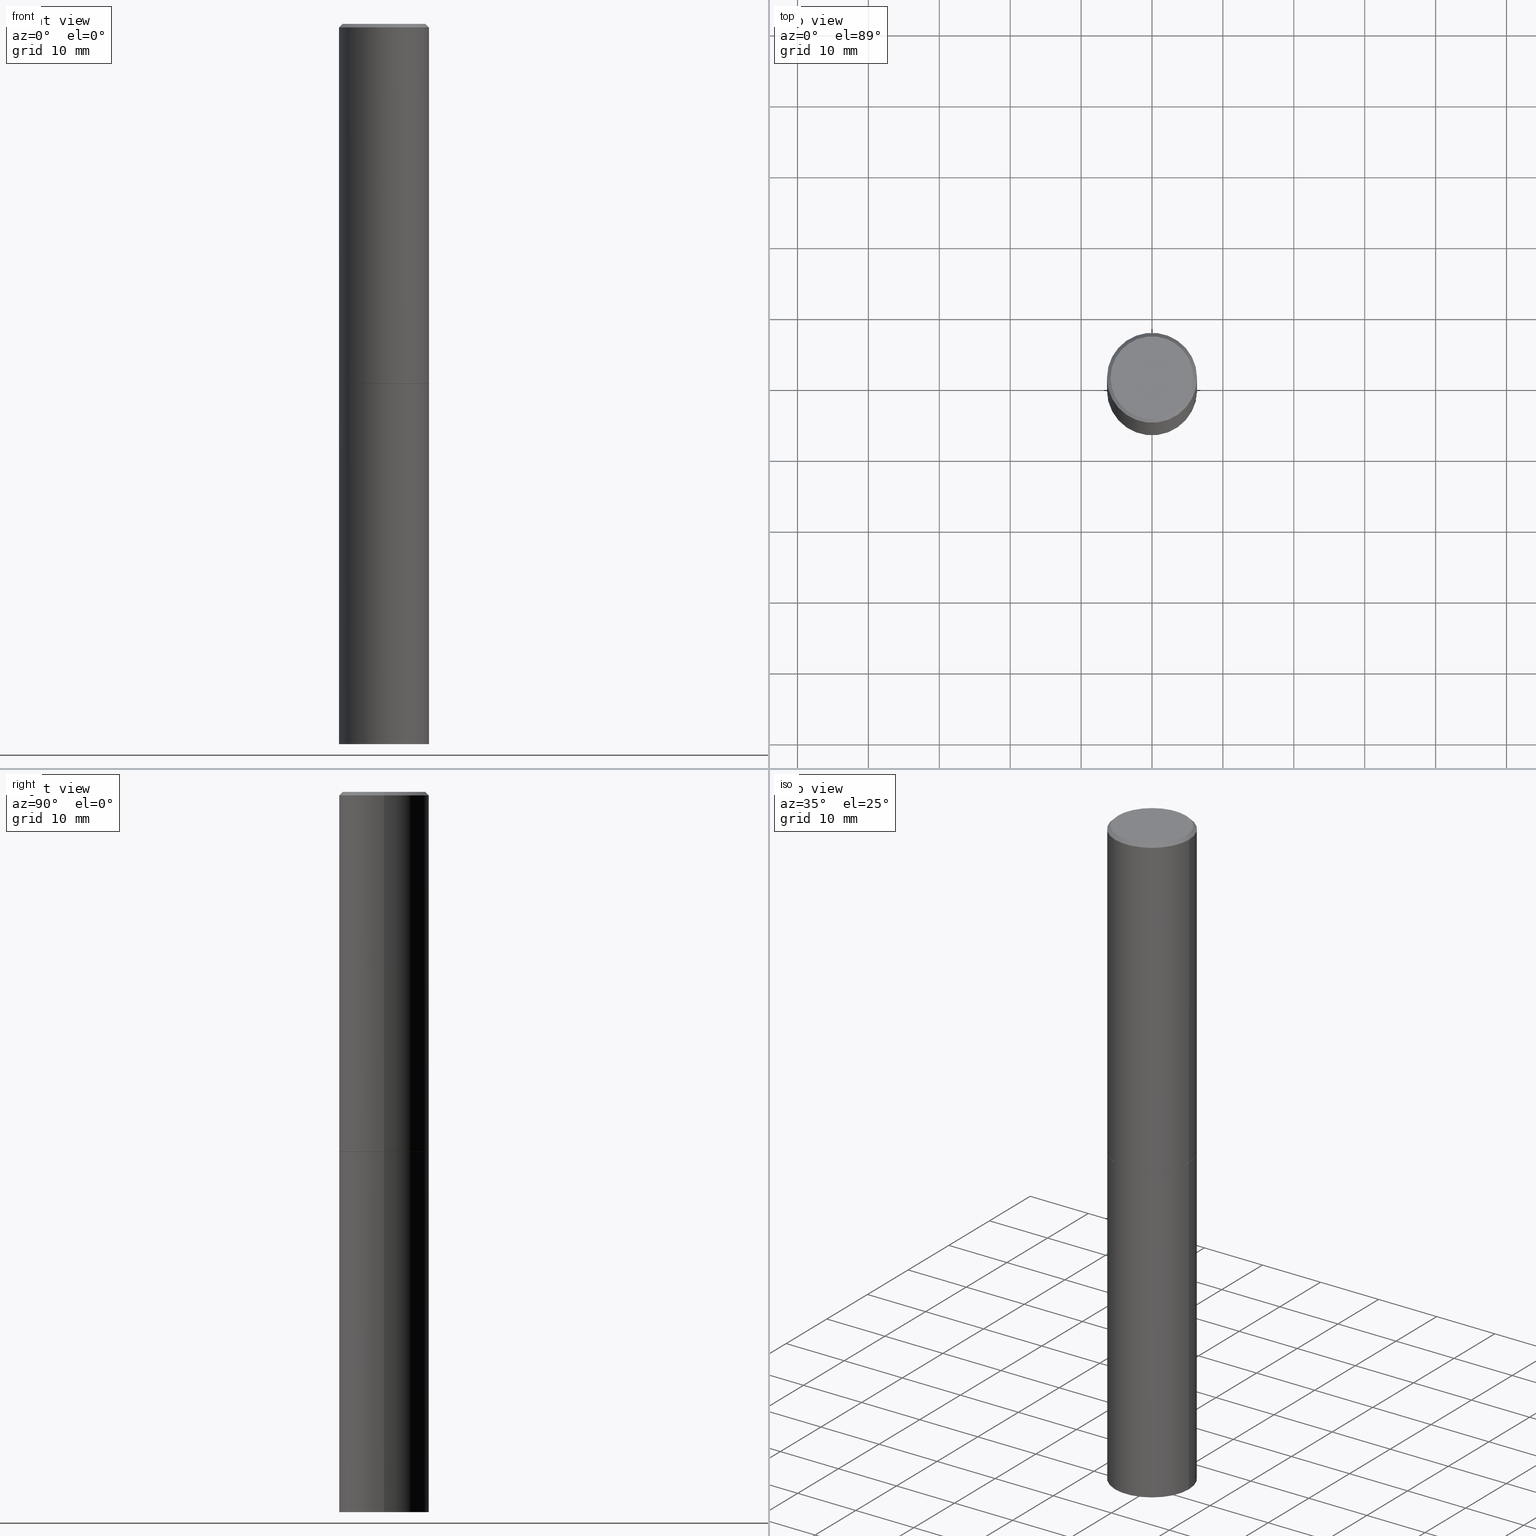
[diagram: canonical four-view strip — front | top / right | iso, engineering-drawing reading convention]
A machine part, canonical four-view strip (front | top / right | iso — engineering-drawing reading convention). The complete STEP part file that produces these views, byte-faithful:
ISO-10303-21;
HEADER;
FILE_DESCRIPTION (( 'STEP AP203' ),
    '1' );
FILE_NAME ('77197.STEP',
    '2024-02-29T16:11:59',
    ( '' ),
    ( '' ),
    'SwSTEP 2.0',
    'SolidWorks 2023',
    '' );
FILE_SCHEMA (( 'CONFIG_CONTROL_DESIGN' ));
ENDSEC;

DATA;
#1 = DIRECTION ( 'NONE',  ( 1.000000000000000000, -6.982962677686266711E-15, 4.876225828469314487E-29 ) ) ;
#2 = DIRECTION ( 'NONE',  ( 1.000000000000000000, -6.982962677686266711E-15, 0.000000000000000000 ) ) ;
#3 = CALENDAR_DATE ( 2024, 29, 2 ) ;
#4 = DIRECTION ( 'NONE',  ( 1.000000000000000000, -6.982962677686266711E-15, 0.000000000000000000 ) ) ;
#5 = PERSON ( 'UNSPECIFIED', 'UNSPECIFIED', 'UNSPECIFIED', ('UNSPECIFIED'), ('UNSPECIFIED'), ('UNSPECIFIED') ) ;
#6 = LINE ( 'NONE', #164, #232 ) ;
#7 = CARTESIAN_POINT ( 'NONE',  ( 4.888492143564087591E-29, -6.979471196347447369E-15, -1.998999999999999888 ) ) ;
#8 = FACE_OUTER_BOUND ( 'NONE', #159, .T. ) ;
#9 = DESIGN_CONTEXT ( 'detailed design', #226, 'design' ) ;
#10 = FACE_OUTER_BOUND ( 'NONE', #306, .T. ) ;
#11 = ORIENTED_EDGE ( 'NONE', *, *, #128, .F. ) ;
#12 = LENGTH_MEASURE_WITH_UNIT ( LENGTH_MEASURE( 0.02539999999999999897 ), #179 );
#13 = PERSON_AND_ORGANIZATION ( #5, #366 ) ;
#14 = VECTOR ( 'NONE', #338, 39.37007874015748143 ) ;
#15 = ORIENTED_EDGE ( 'NONE', *, *, #265, .T. ) ;
#16 = ADVANCED_FACE ( 'NONE', ( #96 ), #328, .T. ) ;
#17 = DIRECTION ( 'NONE',  ( -2.445468806185136597E-29, 3.491481338843145583E-15, 1.000000000000000000 ) ) ;
#18 = ORIENTED_EDGE ( 'NONE', *, *, #258, .T. ) ;
#19 = APPROVAL_ROLE ( '' ) ;
#20 = ORIENTED_EDGE ( 'NONE', *, *, #364, .F. ) ;
#21 = ORIENTED_EDGE ( 'NONE', *, *, #364, .T. ) ;
#22 = FACE_OUTER_BOUND ( 'NONE', #41, .T. ) ;
#23 = COORDINATED_UNIVERSAL_TIME_OFFSET ( 5, 0, .BEHIND. ) ;
#24 = AXIS2_PLACEMENT_3D ( 'NONE', #202, #252, #194 ) ;
#25 = DIRECTION ( 'NONE',  ( -2.445468806185136597E-29, 3.491481338843145583E-15, 1.000000000000000000 ) ) ;
#26 = FACE_OUTER_BOUND ( 'NONE', #299, .T. ) ;
#27 = CARTESIAN_POINT ( 'NONE',  ( 9.781875224740546387E-29, -1.396592535537258233E-14, -4.000000000000000000 ) ) ;
#28 = DIRECTION ( 'NONE',  ( -2.445468806185136597E-29, 3.491481338843145583E-15, 1.000000000000000000 ) ) ;
#29 = DIRECTION ( 'NONE',  ( 0.000000000000000000, 0.000000000000000000, 1.000000000000000000 ) ) ;
#30 = CARTESIAN_POINT ( 'NONE',  ( 0.2499999999999998057, -1.784954126219744611E-15, -0.02000000000000005593 ) ) ;
#31 = PLANE ( 'NONE',  #150 ) ;
#32 = ORIENTED_EDGE ( 'NONE', *, *, #91, .T. ) ;
#33 = DIRECTION ( 'NONE',  ( -2.445468806185136597E-29, 3.491481338843145583E-15, 1.000000000000000000 ) ) ;
#34 = AXIS2_PLACEMENT_3D ( 'NONE', #322, #319, #59 ) ;
#35 = CARTESIAN_POINT ( 'NONE',  ( 4.890937612370287172E-31, -6.982962677686310098E-17, -0.02000000000000005593 ) ) ;
#36 = APPROVAL ( #48, 'UNSPECIFIED' ) ;
#37 = ORIENTED_EDGE ( 'NONE', *, *, #250, .T. ) ;
#38 = CARTESIAN_POINT ( 'NONE',  ( 0.2500000000000000000, -1.745740669421566678E-15, 1.219044193948983948E-29 ) ) ;
#39 = VERTEX_POINT ( 'NONE', #331 ) ;
#40 = CC_DESIGN_SECURITY_CLASSIFICATION ( #264, ( #329 ) ) ;
#41 = EDGE_LOOP ( 'NONE', ( #239, #32 ) ) ;
#42 = ORIENTED_EDGE ( 'NONE', *, *, #191, .F. ) ;
#43 = AXIS2_PLACEMENT_3D ( 'NONE', #27, #53, #342 ) ;
#44 = ORIENTED_EDGE ( 'NONE', *, *, #203, .T. ) ;
#45 = ADVANCED_FACE ( 'NONE', ( #279 ), #347, .T. ) ;
#46 = APPROVAL_ROLE ( '' ) ;
#47 = CARTESIAN_POINT ( 'NONE',  ( 0.2500000000000000000, -1.571166602479415059E-14, -4.000000000000000000 ) ) ;
#48 = APPROVAL_STATUS ( 'not_yet_approved' ) ;
#49 = PLANE ( 'NONE',  #121 ) ;
#50 = SHAPE_DEFINITION_REPRESENTATION ( #335, #240 ) ;
#51 = EDGE_CURVE ( 'NONE', #94, #185, #76, .T. ) ;
#52 = CARTESIAN_POINT ( 'NONE',  ( -0.2299999999999997324, 1.640996229256270744E-15, 4.268512490089056766E-18 ) ) ;
#53 = DIRECTION ( 'NONE',  ( -2.445468806185136597E-29, 3.491481338843145583E-15, 1.000000000000000000 ) ) ;
#54 = PERSON_AND_ORGANIZATION ( #5, #366 ) ;
#55 = CYLINDRICAL_SURFACE ( 'NONE', #92, 0.2499999999999998890 ) ;
#56 = AXIS2_PLACEMENT_3D ( 'NONE', #35, #257, #317 ) ;
#57 = FACE_OUTER_BOUND ( 'NONE', #272, .T. ) ;
#58 = LOCAL_TIME ( 11, 11, 59.00000000000000000, #251 ) ;
#59 = DIRECTION ( 'NONE',  ( 1.000000000000000000, -6.982962677686266711E-15, 0.000000000000000000 ) ) ;
#60 = PERSON_AND_ORGANIZATION ( #5, #366 ) ;
#61 = CARTESIAN_POINT ( 'NONE',  ( -0.2499999999999998057, 1.675911042644702196E-15, -0.02000000000000005593 ) ) ;
#62 = CARTESIAN_POINT ( 'NONE',  ( 0.2499999999999998057, -1.784954126219744611E-15, -0.02000000000000005593 ) ) ;
#63 = DIRECTION ( 'NONE',  ( 0.7071067811865474617, -7.319954787623256045E-15, -0.7071067811865474617 ) ) ;
#64 = DIRECTION ( 'NONE',  ( -0.7071067811865474617, 2.468850131082256666E-15, -0.7071067811865474617 ) ) ;
#65 = EDGE_CURVE ( 'NONE', #189, #187, #339, .T. ) ;
#66 = ORIENTED_EDGE ( 'NONE', *, *, #163, .T. ) ;
#67 = CIRCLE ( 'NONE', #312, 0.2500000000000000000 ) ;
#68 = COORDINATED_UNIVERSAL_TIME_OFFSET ( 5, 0, .BEHIND. ) ;
#69 = EDGE_CURVE ( 'NONE', #129, #303, #120, .T. ) ;
#70 = ORIENTED_EDGE ( 'NONE', *, *, #191, .T. ) ;
#71 = AXIS2_PLACEMENT_3D ( 'NONE', #337, #29, #308 ) ;
#72 = ORIENTED_EDGE ( 'NONE', *, *, #113, .T. ) ;
#73 = CC_DESIGN_PERSON_AND_ORGANIZATION_ASSIGNMENT ( #60, #321, ( #329 ) ) ;
#74 = ORIENTED_EDGE ( 'NONE', *, *, #128, .T. ) ;
#75 = CIRCLE ( 'NONE', #97, 0.2489999999999999991 ) ;
#76 = LINE ( 'NONE', #106, #263 ) ;
#77 = PERSON_AND_ORGANIZATION_ROLE ( 'design_owner' ) ;
#78 = DIRECTION ( 'NONE',  ( 2.438088387897960049E-29, -3.491481338843145188E-15, -1.000000000000000000 ) ) ;
#79 = ADVANCED_FACE ( 'NONE', ( #22 ), #201, .F. ) ;
#80 = DIRECTION ( 'NONE',  ( 1.000000000000000000, -6.982962677686270655E-15, 0.000000000000000000 ) ) ;
#81 = CALENDAR_DATE ( 2024, 29, 2 ) ;
#82 = CIRCLE ( 'NONE', #298, 0.2500000000000000000 ) ;
#83 = DIRECTION ( 'NONE',  ( -2.445468806185136597E-29, 3.491481338843145583E-15, 1.000000000000000000 ) ) ;
#84 = CARTESIAN_POINT ( 'NONE',  ( 0.2489999999999999991, -8.721720384430171040E-15, -1.999999999999999778 ) ) ;
#85 = DIRECTION ( 'NONE',  ( -2.445468806185136597E-29, 3.491481338843145583E-15, 1.000000000000000000 ) ) ;
#86 = CARTESIAN_POINT ( 'NONE',  ( -1.043851414335219820E-46, 1.490343170380447200E-32, 4.268512490100411279E-18 ) ) ;
#87 = CARTESIAN_POINT ( 'NONE',  ( 0.2489999999999999991, -8.721720384430171040E-15, -1.999999999999999778 ) ) ;
#88 = DIRECTION ( 'NONE',  ( -2.445468806185136597E-29, 3.491481338843145583E-15, 1.000000000000000000 ) ) ;
#89 = PERSON_AND_ORGANIZATION_ROLE ( 'design_supplier' ) ;
#90 = CARTESIAN_POINT ( 'NONE',  ( -0.2500000000000000000, -8.698087177129185889E-15, -4.000000000000000000 ) ) ;
#91 = EDGE_CURVE ( 'NONE', #39, #156, #283, .T. ) ;
#92 = AXIS2_PLACEMENT_3D ( 'NONE', #172, #234, #293 ) ;
#93 = ORIENTED_EDGE ( 'NONE', *, *, #65, .T. ) ;
#94 = VERTEX_POINT ( 'NONE', #313 ) ;
#95 = CIRCLE ( 'NONE', #173, 0.2500000000000000000 ) ;
#96 = FACE_OUTER_BOUND ( 'NONE', #101, .T. ) ;
#97 = AXIS2_PLACEMENT_3D ( 'NONE', #144, #85, #141 ) ;
#98 = CC_DESIGN_PERSON_AND_ORGANIZATION_ASSIGNMENT ( #255, #246, ( #235 ) ) ;
#99 = VERTEX_POINT ( 'NONE', #177 ) ;
#100 = ORIENTED_EDGE ( 'NONE', *, *, #258, .F. ) ;
#101 = EDGE_LOOP ( 'NONE', ( #44, #183, #326, #216 ) ) ;
#102 = APPROVAL_PERSON_ORGANIZATION ( #140, #170, #46 ) ;
#103 = ADVANCED_FACE ( 'NONE', ( #10 ), #204, .F. ) ;
#104 = CALENDAR_DATE ( 2024, 29, 2 ) ;
#105 = DIRECTION ( 'NONE',  ( -2.445468806185136597E-29, 3.491481338843145583E-15, 1.000000000000000000 ) ) ;
#106 = CARTESIAN_POINT ( 'NONE',  ( -0.2489999999999999991, -5.213711265643640920E-15, -1.999999999999999778 ) ) ;
#107 = DATE_AND_TIME ( #3, #117 ) ;
#108 = CARTESIAN_POINT ( 'NONE',  ( 4.890937612370273194E-29, -6.982962677686291165E-15, -2.000000000000000000 ) ) ;
#109 = CARTESIAN_POINT ( 'NONE',  ( 0.2500000000000000000, -8.728703347107857054E-15, -2.000000000000000000 ) ) ;
#110 = CALENDAR_DATE ( 2024, 29, 2 ) ;
#111 = CARTESIAN_POINT ( 'NONE',  ( 4.890937612370287172E-31, -6.982962677686310098E-17, -0.02000000000000005593 ) ) ;
#112 = DIRECTION ( 'NONE',  ( -2.445468806185136597E-29, 3.491481338843145583E-15, 1.000000000000000000 ) ) ;
#113 = EDGE_CURVE ( 'NONE', #189, #185, #95, .T. ) ;
#114 = DIRECTION ( 'NONE',  ( 1.000000000000000000, -6.982962677686266711E-15, 0.000000000000000000 ) ) ;
#115 = DIRECTION ( 'NONE',  ( 1.000000000000000000, -6.982962677686266711E-15, 4.876176775795935793E-29 ) ) ;
#116 = PERSON_AND_ORGANIZATION_ROLE ( 'classification_officer' ) ;
#117 = LOCAL_TIME ( 11, 11, 59.00000000000000000, #23 ) ;
#118 = CARTESIAN_POINT ( 'NONE',  ( 1.745740669421615390E-15, 0.2499999999999930334, -2.000000000000000888 ) ) ;
#119 = DATE_TIME_ROLE ( 'classification_date' ) ;
#120 = CIRCLE ( 'NONE', #43, 0.2500000000000000000 ) ;
#121 = AXIS2_PLACEMENT_3D ( 'NONE', #171, #78, #309 ) ;
#122 = ORIENTED_EDGE ( 'NONE', *, *, #203, .F. ) ;
#123 = ORIENTED_EDGE ( 'NONE', *, *, #91, .F. ) ;
#124 = ORIENTED_EDGE ( 'NONE', *, *, #142, .T. ) ;
#125 = EDGE_CURVE ( 'NONE', #156, #39, #143, .T. ) ;
#126 = EDGE_LOOP ( 'NONE', ( #72, #186, #11, #214 ) ) ;
#127 = LOCAL_TIME ( 11, 11, 59.00000000000000000, #261 ) ;
#128 = EDGE_CURVE ( 'NONE', #187, #99, #318, .T. ) ;
#129 = VERTEX_POINT ( 'NONE', #90 ) ;
#130 = ORIENTED_EDGE ( 'NONE', *, *, #69, .T. ) ;
#131 = CLOSED_SHELL ( 'NONE', ( #16, #330, #207, #149, #134, #45, #296, #79 ) ) ;
#132 = APPROVAL_DATE_TIME ( #107, #170 ) ;
#133 = CC_DESIGN_APPROVAL ( #170, ( #235 ) ) ;
#134 = ADVANCED_FACE ( 'NONE', ( #146 ), #260, .T. ) ;
#135 = CYLINDRICAL_SURFACE ( 'NONE', #212, 0.2500000000000000000 ) ;
#136 = DIRECTION ( 'NONE',  ( -2.445468806185136597E-29, 3.491481338843145583E-15, 1.000000000000000000 ) ) ;
#137 = MECHANICAL_CONTEXT ( 'NONE', #152, 'mechanical' ) ;
#138 = FACE_OUTER_BOUND ( 'NONE', #273, .T. ) ;
#139 = CARTESIAN_POINT ( 'NONE',  ( -1.043851414335219820E-46, 1.490343170380447200E-32, 4.268512490100411279E-18 ) ) ;
#140 = PERSON_AND_ORGANIZATION ( #5, #366 ) ;
#141 = DIRECTION ( 'NONE',  ( 1.000000000000000000, -6.982962677686266711E-15, 0.000000000000000000 ) ) ;
#142 = EDGE_CURVE ( 'NONE', #39, #187, #266, .T. ) ;
#143 = CIRCLE ( 'NONE', #360, 0.2299999999999997324 ) ;
#144 = CARTESIAN_POINT ( 'NONE',  ( 4.890937612370272633E-29, -6.982962677686290376E-15, -1.999999999999999778 ) ) ;
#145 = CYLINDRICAL_SURFACE ( 'NONE', #361, 0.2500000000000000000 ) ;
#146 = FACE_OUTER_BOUND ( 'NONE', #237, .T. ) ;
#147 = PERSON_AND_ORGANIZATION ( #5, #366 ) ;
#148 = AXIS2_PLACEMENT_3D ( 'NONE', #139, #307, #1 ) ;
#149 = ADVANCED_FACE ( 'NONE', ( #289 ), #290, .T. ) ;
#150 = AXIS2_PLACEMENT_3D ( 'NONE', #229, #225, #282 ) ;
#151 = DIRECTION ( 'NONE',  ( 2.438088387897960049E-29, -3.491481338843145188E-15, -1.000000000000000000 ) ) ;
#152 = APPLICATION_CONTEXT ( 'configuration controlled 3d designs of mechanical parts and assemblies' ) ;
#153 =( NAMED_UNIT ( * ) SI_UNIT ( $, .STERADIAN. ) SOLID_ANGLE_UNIT ( ) );
#154 = LINE ( 'NONE', #87, #284 ) ;
#155 =( GEOMETRIC_REPRESENTATION_CONTEXT ( 3 ) GLOBAL_UNCERTAINTY_ASSIGNED_CONTEXT ( ( #301 ) ) GLOBAL_UNIT_ASSIGNED_CONTEXT ( ( #292, #208, #153 ) ) REPRESENTATION_CONTEXT ( 'NONE', 'WORKASPACE' ) );
#156 = VERTEX_POINT ( 'NONE', #52 ) ;
#157 = EDGE_LOOP ( 'NONE', ( #354, #350, #297, #160 ) ) ;
#158 = EDGE_CURVE ( 'NONE', #185, #99, #249, .T. ) ;
#159 = EDGE_LOOP ( 'NONE', ( #123, #124, #74, #357 ) ) ;
#160 = ORIENTED_EDGE ( 'NONE', *, *, #178, .F. ) ;
#161 = ORIENTED_EDGE ( 'NONE', *, *, #346, .T. ) ;
#162 = CC_DESIGN_DATE_AND_TIME_ASSIGNMENT ( #280, #219, ( #235 ) ) ;
#163 = EDGE_CURVE ( 'NONE', #99, #187, #304, .T. ) ;
#164 = CARTESIAN_POINT ( 'NONE',  ( -0.2500000000000000000, 1.776356839400250465E-15, -1.229733772563726445E-29 ) ) ;
#165 = AXIS2_PLACEMENT_3D ( 'NONE', #118, #151, #230 ) ;
#166 = APPLICATION_PROTOCOL_DEFINITION ( 'international standard', 'config_control_design', 1994, #152 ) ;
#167 = AXIS2_PLACEMENT_3D ( 'NONE', #193, #285, #227 ) ;
#168 = DIRECTION ( 'NONE',  ( -2.445468806185136597E-29, 3.491481338843145583E-15, 1.000000000000000000 ) ) ;
#169 = COORDINATED_UNIVERSAL_TIME_OFFSET ( 5, 0, .BEHIND. ) ;
#170 = APPROVAL ( #343, 'UNSPECIFIED' ) ;
#171 = CARTESIAN_POINT ( 'NONE',  ( 1.745740669421664299E-15, 0.2499999999999860389, -4.000000000000000888 ) ) ;
#172 = CARTESIAN_POINT ( 'NONE',  ( 0.000000000000000000, 0.000000000000000000, 0.000000000000000000 ) ) ;
#173 = AXIS2_PLACEMENT_3D ( 'NONE', #233, #112, #180 ) ;
#174 = AXIS2_PLACEMENT_3D ( 'NONE', #310, #83, #114 ) ;
#175 = LOCAL_TIME ( 11, 11, 59.00000000000000000, #68 ) ;
#176 = DIRECTION ( 'NONE',  ( -2.445468806185136877E-29, 3.491481338843145188E-15, 1.000000000000000000 ) ) ;
#177 = CARTESIAN_POINT ( 'NONE',  ( -0.2499999999999998057, 1.675911042644702196E-15, -0.02000000000000005593 ) ) ;
#178 = EDGE_CURVE ( 'NONE', #185, #189, #217, .T. ) ;
#179 =( LENGTH_UNIT ( ) NAMED_UNIT ( * ) SI_UNIT ( $, .METRE. ) );
#180 = DIRECTION ( 'NONE',  ( 1.000000000000000000, -6.982962677686266711E-15, 0.000000000000000000 ) ) ;
#181 = AXIS2_PLACEMENT_3D ( 'NONE', #269, #17, #359 ) ;
#182 = ORIENTED_EDGE ( 'NONE', *, *, #250, .F. ) ;
#183 = ORIENTED_EDGE ( 'NONE', *, *, #51, .T. ) ;
#184 = APPROVAL_PERSON_ORGANIZATION ( #13, #362, #19 ) ;
#185 = VERTEX_POINT ( 'NONE', #345 ) ;
#186 = ORIENTED_EDGE ( 'NONE', *, *, #158, .T. ) ;
#187 = VERTEX_POINT ( 'NONE', #30 ) ;
#188 = AXIS2_PLACEMENT_3D ( 'NONE', #7, #168, #247 ) ;
#189 = VERTEX_POINT ( 'NONE', #198 ) ;
#190 = ADVANCED_FACE ( 'NONE', ( #314 ), #135, .T. ) ;
#191 = EDGE_CURVE ( 'NONE', #303, #129, #67, .T. ) ;
#192 = APPROVAL_DATE_TIME ( #195, #362 ) ;
#193 = CARTESIAN_POINT ( 'NONE',  ( 4.890937612370287172E-31, -6.982962677686310098E-17, -0.02000000000000005593 ) ) ;
#194 = DIRECTION ( 'NONE',  ( 1.000000000000000000, -6.982962677686266711E-15, 0.000000000000000000 ) ) ;
#195 = DATE_AND_TIME ( #104, #175 ) ;
#196 = DIRECTION ( 'NONE',  ( -1.000000000000000000, 6.982962677686265922E-15, -4.876176775795935793E-29 ) ) ;
#197 = VECTOR ( 'NONE', #64, 39.37007874015748854 ) ;
#198 = CARTESIAN_POINT ( 'NONE',  ( 0.2500000000000000000, -8.725211865769014047E-15, -1.998999999999999888 ) ) ;
#199 = CARTESIAN_POINT ( 'NONE',  ( 0.2499999999999998890, -1.745740669421565889E-15, 1.219044193948983388E-29 ) ) ;
#200 = FACE_OUTER_BOUND ( 'NONE', #126, .T. ) ;
#201 = PLANE ( 'NONE',  #311 ) ;
#202 = CARTESIAN_POINT ( 'NONE',  ( 4.890937612370272633E-29, -6.982962677686290376E-15, -1.999999999999999778 ) ) ;
#203 = EDGE_CURVE ( 'NONE', #295, #94, #75, .T. ) ;
#204 = PLANE ( 'NONE',  #165 ) ;
#205 = LINE ( 'NONE', #61, #197 ) ;
#206 = DATE_AND_TIME ( #81, #242 ) ;
#207 = ADVANCED_FACE ( 'NONE', ( #8 ), #276, .T. ) ;
#208 =( NAMED_UNIT ( * ) PLANE_ANGLE_UNIT ( ) SI_UNIT ( $, .RADIAN. ) );
#209 = LINE ( 'NONE', #38, #320 ) ;
#210 = EDGE_CURVE ( 'NONE', #94, #295, #325, .T. ) ;
#211 = EDGE_LOOP ( 'NONE', ( #70, #18, #333, #20 ) ) ;
#212 = AXIS2_PLACEMENT_3D ( 'NONE', #220, #105, #340 ) ;
#213 = ADVANCED_FACE ( 'NONE', ( #57 ), #49, .T. ) ;
#214 = ORIENTED_EDGE ( 'NONE', *, *, #65, .F. ) ;
#215 = EDGE_LOOP ( 'NONE', ( #363, #288, #161, #66 ) ) ;
#216 = ORIENTED_EDGE ( 'NONE', *, *, #356, .F. ) ;
#217 = CIRCLE ( 'NONE', #188, 0.2500000000000000000 ) ;
#218 = DIRECTION ( 'NONE',  ( 2.438088387897960049E-29, -3.491481338843145188E-15, -1.000000000000000000 ) ) ;
#219 = DATE_TIME_ROLE ( 'creation_date' ) ;
#220 = CARTESIAN_POINT ( 'NONE',  ( 0.000000000000000000, 0.000000000000000000, 0.000000000000000000 ) ) ;
#221 = DIRECTION ( 'NONE',  ( -0.7071067811866199593, 7.493145998870616062E-15, 0.7071067811864750752 ) ) ;
#222 = PERSON_AND_ORGANIZATION ( #5, #366 ) ;
#223 = DIRECTION ( 'NONE',  ( -2.445468806185136597E-29, 3.491481338843145583E-15, 1.000000000000000000 ) ) ;
#224 = DIMENSIONAL_EXPONENTS ( 1.000000000000000000, 0.000000000000000000, 0.000000000000000000, 0.000000000000000000, 0.000000000000000000, 0.000000000000000000, 0.000000000000000000 ) ;
#225 = DIRECTION ( 'NONE',  ( -2.438088387897960049E-29, 3.491481338843145188E-15, 1.000000000000000000 ) ) ;
#226 = APPLICATION_CONTEXT ( 'configuration controlled 3d designs of mechanical parts and assemblies' ) ;
#227 = DIRECTION ( 'NONE',  ( -1.000000000000000000, 6.982962677686266711E-15, 0.000000000000000000 ) ) ;
#228 = CC_DESIGN_PERSON_AND_ORGANIZATION_ASSIGNMENT ( #351, #89, ( #329 ) ) ;
#229 = CARTESIAN_POINT ( 'NONE',  ( 4.890937612370272633E-29, -6.982962677686290376E-15, -1.999999999999999778 ) ) ;
#230 = DIRECTION ( 'NONE',  ( -1.000000000000000000, 6.982962677686265922E-15, -4.876176775795935793E-29 ) ) ;
#231 = APPROVAL_DATE_TIME ( #206, #36 ) ;
#232 = VECTOR ( 'NONE', #176, 39.37007874015748143 ) ;
#233 = CARTESIAN_POINT ( 'NONE',  ( 4.888492143564087591E-29, -6.979471196347447369E-15, -1.998999999999999888 ) ) ;
#234 = DIRECTION ( 'NONE',  ( -2.445468806185136597E-29, 3.491481338843145583E-15, 1.000000000000000000 ) ) ;
#235 = PRODUCT_DEFINITION ( 'UNKNOWN', '', #329, #9 ) ;
#236 = APPROVAL_STATUS ( 'not_yet_approved' ) ;
#237 = EDGE_LOOP ( 'NONE', ( #300, #243, #93, #244 ) ) ;
#238 = MANIFOLD_SOLID_BREP ( 'Body-Move/Copy2[2]', #131 ) ;
#239 = ORIENTED_EDGE ( 'NONE', *, *, #125, .T. ) ;
#240 = ADVANCED_BREP_SHAPE_REPRESENTATION ( '77197', ( #358, #238, #71 ), #155 ) ;
#241 = VECTOR ( 'NONE', #63, 39.37007874015748854 ) ;
#242 = LOCAL_TIME ( 11, 11, 59.00000000000000000, #169 ) ;
#243 = ORIENTED_EDGE ( 'NONE', *, *, #178, .T. ) ;
#244 = ORIENTED_EDGE ( 'NONE', *, *, #163, .F. ) ;
#245 = CARTESIAN_POINT ( 'NONE',  ( 1.606081415867839292E-15, 0.2299999999999997324, -8.009064516888723911E-16 ) ) ;
#246 = PERSON_AND_ORGANIZATION_ROLE ( 'creator' ) ;
#247 = DIRECTION ( 'NONE',  ( 1.000000000000000000, -6.982962677686266711E-15, 0.000000000000000000 ) ) ;
#248 = DIRECTION ( 'NONE',  ( 1.000000000000000000, -6.982962677686266711E-15, 0.000000000000000000 ) ) ;
#249 = LINE ( 'NONE', #281, #14 ) ;
#250 = EDGE_CURVE ( 'NONE', #268, #270, #256, .T. ) ;
#251 = COORDINATED_UNIVERSAL_TIME_OFFSET ( 5, 0, .BEHIND. ) ;
#252 = DIRECTION ( 'NONE',  ( -2.445468806185136597E-29, 3.491481338843145583E-15, 1.000000000000000000 ) ) ;
#253 = CARTESIAN_POINT ( 'NONE',  ( 4.890937612370272633E-29, -6.982962677686290376E-15, -1.999999999999999778 ) ) ;
#254 = AXIS2_PLACEMENT_3D ( 'NONE', #323, #33, #115 ) ;
#255 = PERSON_AND_ORGANIZATION ( #5, #366 ) ;
#256 = CIRCLE ( 'NONE', #174, 0.2500000000000000000 ) ;
#257 = DIRECTION ( 'NONE',  ( 2.445468806185136597E-29, -3.491481338843145583E-15, -1.000000000000000000 ) ) ;
#258 = EDGE_CURVE ( 'NONE', #129, #268, #6, .T. ) ;
#259 = CARTESIAN_POINT ( 'NONE',  ( 9.781875224740546387E-29, -1.396592535537258233E-14, -4.000000000000000000 ) ) ;
#260 = CYLINDRICAL_SURFACE ( 'NONE', #254, 0.2499999999999998890 ) ;
#261 = COORDINATED_UNIVERSAL_TIME_OFFSET ( 5, 0, .BEHIND. ) ;
#262 = DATE_AND_TIME ( #287, #127 ) ;
#263 = VECTOR ( 'NONE', #221, 39.37007874015748143 ) ;
#264 = SECURITY_CLASSIFICATION ( '', '', #294 ) ;
#265 = EDGE_CURVE ( 'NONE', #270, #268, #82, .T. ) ;
#266 = LINE ( 'NONE', #62, #241 ) ;
#267 = DIRECTION ( 'NONE',  ( -2.445468806185136877E-29, 3.491481338843145188E-15, 1.000000000000000000 ) ) ;
#268 = VERTEX_POINT ( 'NONE', #316 ) ;
#269 = CARTESIAN_POINT ( 'NONE',  ( 4.890937612370272633E-29, -6.982962677686290376E-15, -1.999999999999999778 ) ) ;
#270 = VERTEX_POINT ( 'NONE', #109 ) ;
#271 = AXIS2_PLACEMENT_3D ( 'NONE', #253, #136, #248 ) ;
#272 = EDGE_LOOP ( 'NONE', ( #42, #327 ) ) ;
#273 = EDGE_LOOP ( 'NONE', ( #100, #130, #21, #182 ) ) ;
#274 = APPLICATION_PROTOCOL_DEFINITION ( 'international standard', 'config_control_design', 1994, #226 ) ;
#275 = CARTESIAN_POINT ( 'NONE',  ( 0.000000000000000000, 0.000000000000000000, 0.000000000000000000 ) ) ;
#276 = CONICAL_SURFACE ( 'NONE', #167, 0.2499999999999998057, 0.7853981633974482790 ) ;
#277 = APPROVAL_ROLE ( '' ) ;
#278 = DIRECTION ( 'NONE',  ( -2.445468806185136597E-29, 3.491481338843145583E-15, 1.000000000000000000 ) ) ;
#279 = FACE_OUTER_BOUND ( 'NONE', #157, .T. ) ;
#280 = DATE_AND_TIME ( #110, #58 ) ;
#281 = CARTESIAN_POINT ( 'NONE',  ( -0.2499999999999998890, 1.776356839400249676E-15, -1.229733772563726025E-29 ) ) ;
#282 = DIRECTION ( 'NONE',  ( 1.000000000000000000, -6.982962677686265922E-15, 4.876176775795935793E-29 ) ) ;
#283 = CIRCLE ( 'NONE', #148, 0.2299999999999997324 ) ;
#284 = VECTOR ( 'NONE', #353, 39.37007874015748143 ) ;
#285 = DIRECTION ( 'NONE',  ( 2.445468806185136597E-29, -3.491481338843145583E-15, -1.000000000000000000 ) ) ;
#286 = PRODUCT_RELATED_PRODUCT_CATEGORY ( 'detail', '', ( #332 ) ) ;
#287 = CALENDAR_DATE ( 2024, 29, 2 ) ;
#288 = ORIENTED_EDGE ( 'NONE', *, *, #125, .F. ) ;
#289 = FACE_OUTER_BOUND ( 'NONE', #215, .T. ) ;
#290 = CONICAL_SURFACE ( 'NONE', #56, 0.2499999999999998057, 0.7853981633974482790 ) ;
#291 = CC_DESIGN_APPROVAL ( #36, ( #329 ) ) ;
#292 =( CONVERSION_BASED_UNIT ( 'INCH', #12 ) LENGTH_UNIT ( ) NAMED_UNIT ( #224 ) );
#293 = DIRECTION ( 'NONE',  ( 1.000000000000000000, -6.982962677686266711E-15, 4.876176775795935793E-29 ) ) ;
#294 = SECURITY_CLASSIFICATION_LEVEL ( 'unclassified' ) ;
#295 = VERTEX_POINT ( 'NONE', #84 ) ;
#296 = ADVANCED_FACE ( 'NONE', ( #26 ), #31, .F. ) ;
#297 = ORIENTED_EDGE ( 'NONE', *, *, #356, .T. ) ;
#298 = AXIS2_PLACEMENT_3D ( 'NONE', #108, #278, #2 ) ;
#299 = EDGE_LOOP ( 'NONE', ( #122, #334 ) ) ;
#300 = ORIENTED_EDGE ( 'NONE', *, *, #158, .F. ) ;
#301 = UNCERTAINTY_MEASURE_WITH_UNIT (LENGTH_MEASURE( 1.000000000000000082E-05 ), #292, 'distance_accuracy_value', 'NONE');
#302 = CC_DESIGN_PERSON_AND_ORGANIZATION_ASSIGNMENT ( #54, #77, ( #332 ) ) ;
#303 = VERTEX_POINT ( 'NONE', #47 ) ;
#304 = CIRCLE ( 'NONE', #352, 0.2499999999999998057 ) ;
#305 = CC_DESIGN_APPROVAL ( #362, ( #264 ) ) ;
#306 = EDGE_LOOP ( 'NONE', ( #15, #37 ) ) ;
#307 = DIRECTION ( 'NONE',  ( -2.445468806185136597E-29, 3.491481338843145583E-15, 1.000000000000000000 ) ) ;
#308 = DIRECTION ( 'NONE',  ( 1.000000000000000000, 0.000000000000000000, 0.000000000000000000 ) ) ;
#309 = DIRECTION ( 'NONE',  ( -1.000000000000000000, 6.982962677686265922E-15, -4.876176775795935793E-29 ) ) ;
#310 = CARTESIAN_POINT ( 'NONE',  ( 4.890937612370273194E-29, -6.982962677686291165E-15, -2.000000000000000000 ) ) ;
#311 = AXIS2_PLACEMENT_3D ( 'NONE', #245, #218, #196 ) ;
#312 = AXIS2_PLACEMENT_3D ( 'NONE', #259, #223, #80 ) ;
#313 = CARTESIAN_POINT ( 'NONE',  ( -0.2489999999999999991, -5.208412811295418518E-15, -1.999999999999999778 ) ) ;
#314 = FACE_OUTER_BOUND ( 'NONE', #211, .T. ) ;
#315 = DIRECTION ( 'NONE',  ( -2.445468806185136877E-29, 3.491481338843145188E-15, 1.000000000000000000 ) ) ;
#316 = CARTESIAN_POINT ( 'NONE',  ( -0.2500000000000000000, -8.698087177129185889E-15, -2.000000000000000000 ) ) ;
#317 = DIRECTION ( 'NONE',  ( -1.000000000000000000, 6.982962677686266711E-15, 0.000000000000000000 ) ) ;
#318 = CIRCLE ( 'NONE', #34, 0.2499999999999998057 ) ;
#319 = DIRECTION ( 'NONE',  ( -2.445468806185136597E-29, 3.491481338843145583E-15, 1.000000000000000000 ) ) ;
#320 = VECTOR ( 'NONE', #267, 39.37007874015748143 ) ;
#321 = PERSON_AND_ORGANIZATION_ROLE ( 'creator' ) ;
#322 = CARTESIAN_POINT ( 'NONE',  ( 4.890937612370287172E-31, -6.982962677686310098E-17, -0.02000000000000005593 ) ) ;
#323 = CARTESIAN_POINT ( 'NONE',  ( 0.000000000000000000, 0.000000000000000000, 0.000000000000000000 ) ) ;
#324 = ADVANCED_FACE ( 'NONE', ( #138 ), #145, .T. ) ;
#325 = CIRCLE ( 'NONE', #24, 0.2489999999999999991 ) ;
#326 = ORIENTED_EDGE ( 'NONE', *, *, #113, .F. ) ;
#327 = ORIENTED_EDGE ( 'NONE', *, *, #69, .F. ) ;
#328 = CONICAL_SURFACE ( 'NONE', #181, 0.2489999999999999991, 0.7853981633975507526 ) ;
#329 = PRODUCT_DEFINITION_FORMATION_WITH_SPECIFIED_SOURCE ( 'ANY', '', #332, .NOT_KNOWN. ) ;
#330 = ADVANCED_FACE ( 'NONE', ( #200 ), #55, .T. ) ;
#331 = CARTESIAN_POINT ( 'NONE',  ( 0.2299999999999997324, -1.681434332853597433E-15, 4.268512490111905999E-18 ) ) ;
#332 = PRODUCT ( '77197', '77197', '', ( #137 ) ) ;
#333 = ORIENTED_EDGE ( 'NONE', *, *, #265, .F. ) ;
#334 = ORIENTED_EDGE ( 'NONE', *, *, #210, .F. ) ;
#335 = PRODUCT_DEFINITION_SHAPE ( 'NONE', 'NONE',  #235 ) ;
#336 = CLOSED_SHELL ( 'NONE', ( #190, #213, #103, #324 ) ) ;
#337 = CARTESIAN_POINT ( 'NONE',  ( 0.000000000000000000, 0.000000000000000000, 0.000000000000000000 ) ) ;
#338 = DIRECTION ( 'NONE',  ( -2.445468806185136877E-29, 3.491481338843145188E-15, 1.000000000000000000 ) ) ;
#339 = LINE ( 'NONE', #199, #365 ) ;
#340 = DIRECTION ( 'NONE',  ( 1.000000000000000000, -6.982962677686266711E-15, 4.876176775795935793E-29 ) ) ;
#341 = DIRECTION ( 'NONE',  ( 1.000000000000000000, -6.982962677686266711E-15, 4.876176775795935793E-29 ) ) ;
#342 = DIRECTION ( 'NONE',  ( 1.000000000000000000, -6.982962677686270655E-15, 0.000000000000000000 ) ) ;
#343 = APPROVAL_STATUS ( 'not_yet_approved' ) ;
#344 = CC_DESIGN_DATE_AND_TIME_ASSIGNMENT ( #262, #119, ( #264 ) ) ;
#345 = CARTESIAN_POINT ( 'NONE',  ( -0.2500000000000000000, -1.748293572161903489E-15, -1.998999999999999888 ) ) ;
#346 = EDGE_CURVE ( 'NONE', #156, #99, #205, .T. ) ;
#347 = CONICAL_SURFACE ( 'NONE', #271, 0.2489999999999999991, 0.7853981633975507526 ) ;
#348 = DIRECTION ( 'NONE',  ( 1.000000000000000000, -6.982962677686266711E-15, 4.876225828469314487E-29 ) ) ;
#349 = APPROVAL_PERSON_ORGANIZATION ( #222, #36, #277 ) ;
#350 = ORIENTED_EDGE ( 'NONE', *, *, #210, .T. ) ;
#351 = PERSON_AND_ORGANIZATION ( #5, #366 ) ;
#352 = AXIS2_PLACEMENT_3D ( 'NONE', #111, #28, #4 ) ;
#353 = DIRECTION ( 'NONE',  ( 0.7071067811866199593, -2.468850131083015945E-15, 0.7071067811864750752 ) ) ;
#354 = ORIENTED_EDGE ( 'NONE', *, *, #51, .F. ) ;
#355 = CC_DESIGN_PERSON_AND_ORGANIZATION_ASSIGNMENT ( #147, #116, ( #264 ) ) ;
#356 = EDGE_CURVE ( 'NONE', #295, #189, #154, .T. ) ;
#357 = ORIENTED_EDGE ( 'NONE', *, *, #346, .F. ) ;
#358 = MANIFOLD_SOLID_BREP ( 'Body-Move/Copy2[1]', #336 ) ;
#359 = DIRECTION ( 'NONE',  ( 1.000000000000000000, -6.982962677686266711E-15, 0.000000000000000000 ) ) ;
#360 = AXIS2_PLACEMENT_3D ( 'NONE', #86, #88, #348 ) ;
#361 = AXIS2_PLACEMENT_3D ( 'NONE', #275, #25, #341 ) ;
#362 = APPROVAL ( #236, 'UNSPECIFIED' ) ;
#363 = ORIENTED_EDGE ( 'NONE', *, *, #142, .F. ) ;
#364 = EDGE_CURVE ( 'NONE', #303, #270, #209, .T. ) ;
#365 = VECTOR ( 'NONE', #315, 39.37007874015748143 ) ;
#366 = ORGANIZATION ( 'UNSPECIFIED', 'UNSPECIFIED', '' ) ;
ENDSEC;
END-ISO-10303-21;
